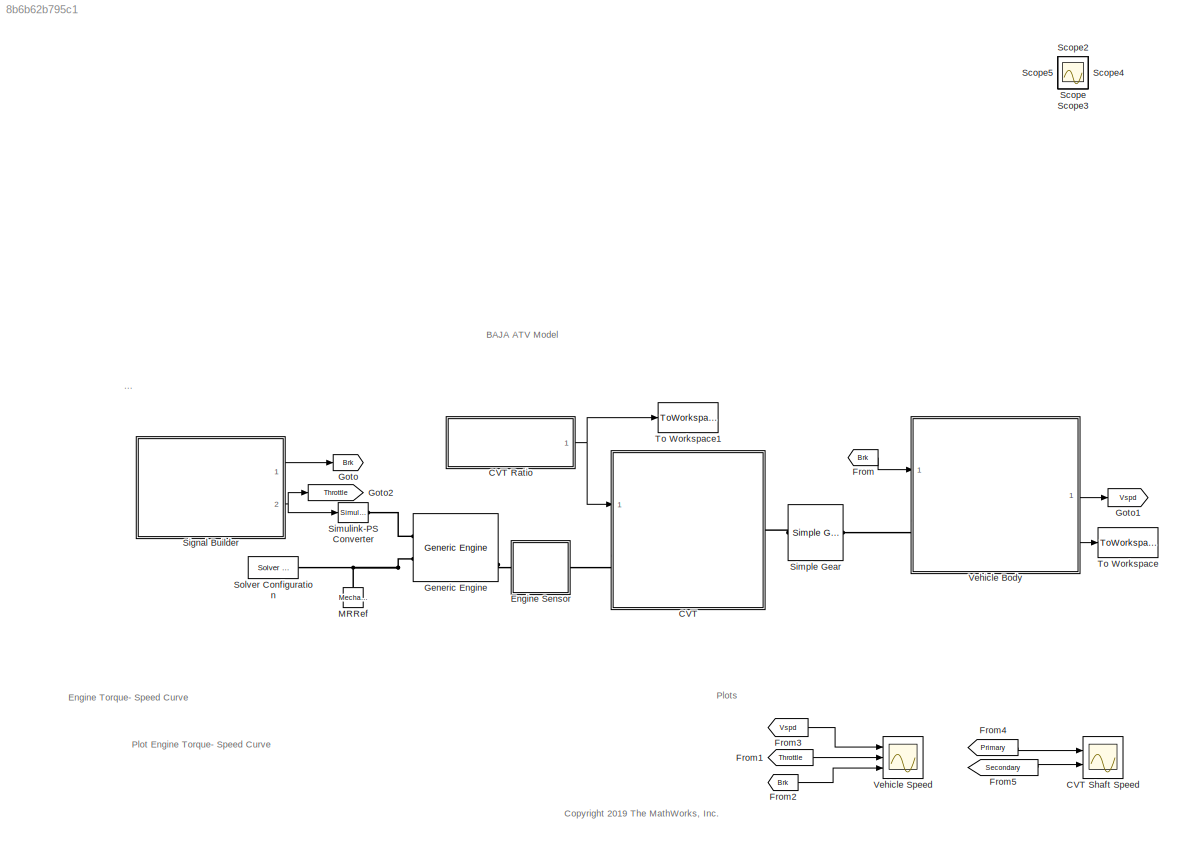
MODEL slx_8b6b62b795c1
KIND model
CONFIG AbsTol = 1e-3
CONFIG EnableMultiTasking = on
CONFIG FixedStep = 1e-3
CONFIG MaxStep = auto
CONFIG MinStep = auto
CONFIG PreLoadFcn = m1=3.5;\nm2=3.2;\nmr1=0.8;\nmr2=0.7;\nspeedVector=[1508.85099817596;1518.45723596462;1530.44196592720;1537.65262467286;1544.87011816615;1563.98348990289;1583.08660951818;1616.48460379372;1668.91395283447;1709.42350201510;1752.30812599583;1799.96340381967;1847.59134265301;1904.74008492967;1971.45405650923;2028.61646828115;2083.40038787914;2140.55254752961;2190.54189166781;2259.62068592604;2323.95274795...<+2046ch>
CONFIG RelTol = 1e-3
CONFIG SampleTimeConstraint = Unconstrained
CONFIG SolverName = VariableStepAuto
CONFIG StartTime = 0.0
CONFIG StopTime = 200
WORKSPACE source: mxarray member
WORKSPACE DOWN_TABLE = [0 0 0 0 0 0 5 5 5 5 30 30 ... (24 elements, 6x4)]
WORKSPACE DOWN_TH_BP = [0 0.05 0.4 0.5 0.9 1]
WORKSPACE TWAIT = 2
WORKSPACE UP_TABLE = [10 10 15 23 40 40 30 30 30 41 70 70 ... (24 elements, 6x4)]
WORKSPACE UP_TH_BP = [0 0.25 0.35 0.5 0.9 1]
WORKSPACE clutchRise = 0.1
WORKSPACE eff_tor_rad = 0.4
WORKSPACE engagement_area = 0.0025
WORKSPACE fric_coeff = 0.5
WORKSPACE num_fric_surf = 6
WORKSPACE p0 = 2000000
WORKSPACE peak_normal = 0.55
WORKSPACE pressThresh = 0.05
WORKSPACE velTol = 0.001
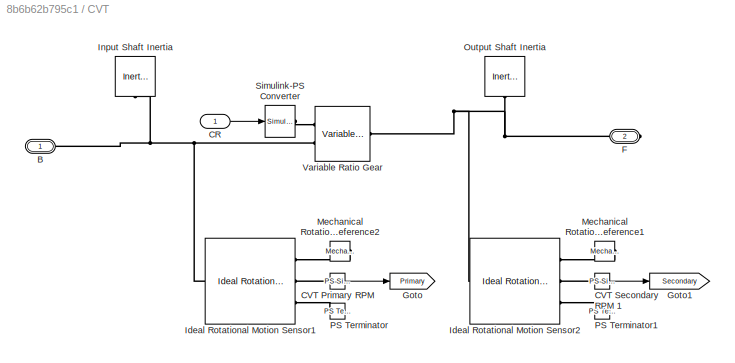
BLOCK [SubSystem] CVT
  Ports = [1, 0, 0, 0, 0, 1, 1]
  RequestExecContextInheritance = off
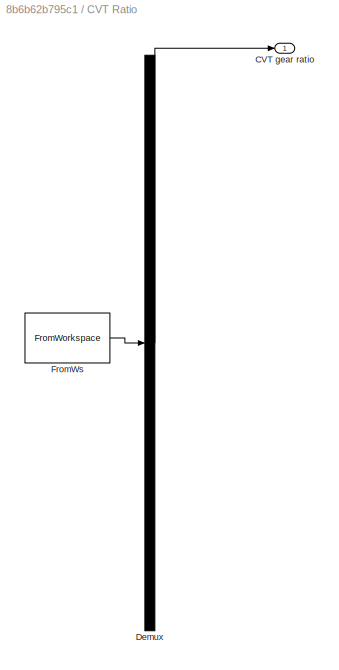
BLOCK [SubSystem] CVT Ratio
  ClipboardFcn = sigbuilder_block('clipboard');
  CloseFcn = sigbuilder_block('close');
  ContinueFcn = sigbuilder_block('continue');
  CopyFcn = sigbuilder_block('copy');
  DeleteFcn = sigbuilder_block('delete');
  LoadFcn = sigbuilder_block('load');
  MaskHideContents = on
  ModelCloseFcn = sigbuilder_block('modelClose');
  NameChangeFcn = sigbuilder_block('namechange');
  OpenFcn = sigbuilder_block('open',[144.5 122.5 454 242 ]);
  PauseFcn = sigbuilder_block('pause');
  Ports = [0, 1]
  PreSaveFcn = sigbuilder_block('preSave');
  RequestExecContextInheritance = off
  StartFcn = sigbuilder_block('start');
  StopFcn = sigbuilder_block('stop');
  Tag = STV Subsys
BLOCK [Outport] CVT Ratio/CVT gear ratio
  Tag = STV Outport
  VectorParamsAs1DForOutWhenUnconnected = off
BLOCK [Demux] CVT Ratio/Demux
  DisplayOption = none
  Outputs = 1
  Ports = [1, 1]
  Tag = STV Demux
BLOCK [FromWorkspace] CVT Ratio/FromWs
  Tag = STV FromWs
  VariableName = tuvar
BLOCK [Scope] CVT Shaft Speed
  Floating = off
  NumInputPorts = 2
  Ports = [2]
  ScopeSpecificationString = Simulink.scopes.TimeScopeBlockCfg('CurrentConfiguration', extmgr.ConfigurationSet(extmgr.Configuration('Core','General UI',true),extmgr.Configuration('Core','Source UI',true),extmgr.Configuration('Sources','WiredSimulink',true,'DataLoggingVariableName','ScopeData1'),extmgr.Configuration('Visuals','Time Domain',true,'SerializedDisplays',{struct('MinYLimReal','-119.46277','MaxYLimReal','1075.16489',...<+1564ch>
BLOCK [PMIOPort] CVT/B
  Side = Left
BLOCK [Inport] CVT/CR
BLOCK [Reference] CVT/CVT Primary RPM   REF=nesl_utility/PS-Simulink
Converter
  Ports = [0, 1, 0, 0, 0, 1]
  SourceBlock = nesl_utility/PS-Simulink\nConverter
  SourceProductBaseCode = SS,PW,VE
  SourceType = PS-Simulink\nConverter
BLOCK [Reference] CVT/CVT Secondary RPM 1  REF=nesl_utility/PS-Simulink
Converter
  Ports = [0, 1, 0, 0, 0, 1]
  SourceBlock = nesl_utility/PS-Simulink\nConverter
  SourceProductBaseCode = SS,PW,VE
  SourceType = PS-Simulink\nConverter
BLOCK [PMIOPort] CVT/F
  Port = 2
  Side = Right
BLOCK [Goto] CVT/Goto
  GotoTag = Primary
  TagVisibility = global
BLOCK [Goto] CVT/Goto1
  GotoTag = Secondary
  TagVisibility = global
BLOCK [Reference] CVT/Ideal Rotational Motion Sensor1  REF=fl_lib/Mechanical/Mechanical Sensors/Ideal Rotational
Motion Sensor
  Ports = [0, 0, 0, 0, 0, 1, 3]
  SourceBlock = fl_lib/Mechanical/Mechanical Sensors/Ideal Rotational\nMotion Sensor
  SourceProductBaseCode = PW,SS,VE
  SourceType = Ideal Rotational\nMotion Sensor
BLOCK [Reference] CVT/Ideal Rotational Motion Sensor2  REF=fl_lib/Mechanical/Mechanical Sensors/Ideal Rotational
Motion Sensor
  Ports = [0, 0, 0, 0, 0, 1, 3]
  SourceBlock = fl_lib/Mechanical/Mechanical Sensors/Ideal Rotational\nMotion Sensor
  SourceProductBaseCode = PW,SS,VE
  SourceType = Ideal Rotational\nMotion Sensor
BLOCK [Reference] CVT/Input Shaft Inertia  REF=fl_lib/Mechanical/Rotational Elements/Inertia
  NameLocation = right
  Ports = [0, 0, 0, 0, 0, 1]
  SourceBlock = fl_lib/Mechanical/Rotational Elements/Inertia
  SourceProductBaseCode = PW,SS,VE
  SourceType = Inertia
BLOCK [Reference] CVT/Mechanical Rotational Reference1  REF=fl_lib/Mechanical/Rotational Elements/Mechanical
Rotational Reference
  Ports = [0, 0, 0, 0, 0, 1]
  SourceBlock = fl_lib/Mechanical/Rotational Elements/Mechanical\nRotational Reference
  SourceProductBaseCode = PW,SS,VE
  SourceType = Mechanical\nRotational Reference
BLOCK [Reference] CVT/Mechanical Rotational Reference2  REF=fl_lib/Mechanical/Rotational Elements/Mechanical
Rotational Reference
  Ports = [0, 0, 0, 0, 0, 1]
  SourceBlock = fl_lib/Mechanical/Rotational Elements/Mechanical\nRotational Reference
  SourceProductBaseCode = PW,SS,VE
  SourceType = Mechanical\nRotational Reference
BLOCK [Reference] CVT/Output Shaft Inertia  REF=fl_lib/Mechanical/Rotational Elements/Inertia
  NameLocation = right
  Ports = [0, 0, 0, 0, 0, 1]
  SourceBlock = fl_lib/Mechanical/Rotational Elements/Inertia
  SourceProductBaseCode = PW,SS,VE
  SourceType = Inertia
BLOCK [Reference] CVT/PS Terminator  REF=fl_lib/Physical Signals/Sinks/PS Terminator
  Ports = [0, 0, 0, 0, 0, 1]
  SourceBlock = fl_lib/Physical Signals/Sinks/PS Terminator
  SourceProductBaseCode = PW,SS,VE
  SourceType = PS Terminator
BLOCK [Reference] CVT/PS Terminator1  REF=fl_lib/Physical Signals/Sinks/PS Terminator
  Ports = [0, 0, 0, 0, 0, 1]
  SourceBlock = fl_lib/Physical Signals/Sinks/PS Terminator
  SourceProductBaseCode = PW,SS,VE
  SourceType = PS Terminator
BLOCK [Reference] CVT/Simulink-PS Converter  REF=nesl_utility/Simulink-PS
Converter
  Ports = [1, 0, 0, 0, 0, 0, 1]
  SourceBlock = nesl_utility/Simulink-PS\nConverter
  SourceProductBaseCode = SS,PW,VE
  SourceType = Simulink-PS\nConverter
BLOCK [Reference] CVT/Variable Ratio Gear  REF=sdl_lib/Couplings & Drives/Variable Ratio
Transmission
  NameLocation = top
  Ports = [0, 0, 0, 0, 0, 2, 1]
  SourceBlock = sdl_lib/Couplings & Drives/Variable Ratio\nTransmission
  SourceProductBaseCode = LD
  SourceType = Variable Ratio\nTransmission
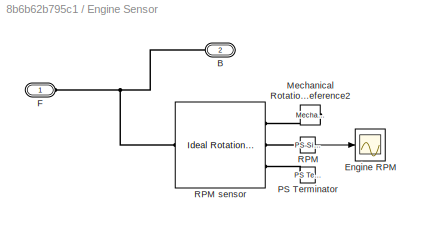
BLOCK [SubSystem] Engine Sensor
  Ports = [0, 0, 0, 0, 0, 1, 1]
  RequestExecContextInheritance = off
BLOCK [Reference] Engine Sensor/    RPM  REF=nesl_utility/PS-Simulink
Converter
  Ports = [0, 1, 0, 0, 0, 1]
  SourceBlock = nesl_utility/PS-Simulink\nConverter
  SourceProductBaseCode = SS,PW,VE
  SourceType = PS-Simulink\nConverter
BLOCK [PMIOPort] Engine Sensor/B 
  Port = 2
  Side = Right
BLOCK [Scope] Engine Sensor/Engine RPM 
  Floating = off
  NumInputPorts = 1
  Ports = [1]
  ScopeSpecificationString = Simulink.scopes.TimeScopeBlockCfg('CurrentConfiguration', extmgr.ConfigurationSet(extmgr.Configuration('Core','General UI',true),extmgr.Configuration('Core','Source UI',true),extmgr.Configuration('Sources','WiredSimulink',true,'DataLoggingVariableName','ScopeData2'),extmgr.Configuration('Visuals','Time Domain',true,'SerializedDisplays',{struct('MinYLimReal','1436.38887','MaxYLimReal','4079.2117','...<+1491ch>
BLOCK [PMIOPort] Engine Sensor/F
  Side = Left
BLOCK [Reference] Engine Sensor/Mechanical Rotational Reference2  REF=fl_lib/Mechanical/Rotational Elements/Mechanical
Rotational Reference
  Ports = [0, 0, 0, 0, 0, 1]
  SourceBlock = fl_lib/Mechanical/Rotational Elements/Mechanical\nRotational Reference
  SourceProductBaseCode = PW,SS,VE
  SourceType = Mechanical\nRotational Reference
BLOCK [Reference] Engine Sensor/PS Terminator  REF=fl_lib/Physical Signals/Sinks/PS Terminator
  Ports = [0, 0, 0, 0, 0, 1]
  SourceBlock = fl_lib/Physical Signals/Sinks/PS Terminator
  SourceProductBaseCode = PW,SS,VE
  SourceType = PS Terminator
BLOCK [Reference] Engine Sensor/RPM sensor  REF=fl_lib/Mechanical/Mechanical Sensors/Ideal Rotational
Motion Sensor
  Ports = [0, 0, 0, 0, 0, 1, 3]
  SourceBlock = fl_lib/Mechanical/Mechanical Sensors/Ideal Rotational\nMotion Sensor
  SourceProductBaseCode = PW,SS,VE
  SourceType = Ideal Rotational\nMotion Sensor
BLOCK [From] From
  GotoTag = Brk
  TagVisibility = global
BLOCK [From] From1
  GotoTag = Throttle
  TagVisibility = global
BLOCK [From] From2
  GotoTag = Brk
  TagVisibility = global
BLOCK [From] From3
  GotoTag = Vspd
  TagVisibility = global
BLOCK [From] From4
  GotoTag = Primary
  TagVisibility = global
BLOCK [From] From5
  GotoTag = Secondary
  TagVisibility = global
BLOCK [Reference] Generic Engine  REF=sdl_lib/Engines & Motors/Generic Engine
  Ports = [0, 0, 0, 0, 0, 2, 3]
  SourceBlock = sdl_lib/Engines & Motors/Generic Engine
  SourceProductBaseCode = LD
  SourceType = Generic Engine
BLOCK [Goto] Goto
  GotoTag = Brk
  TagVisibility = global
BLOCK [Goto] Goto1
  GotoTag = Vspd
  TagVisibility = global
BLOCK [Goto] Goto2
  GotoTag = Throttle
  TagVisibility = global
BLOCK [Reference] MRRef  REF=fl_lib/Mechanical/Rotational Elements/Mechanical
Rotational Reference
  NameLocation = right
  Ports = [0, 0, 0, 0, 0, 1]
  SourceBlock = fl_lib/Mechanical/Rotational Elements/Mechanical\nRotational Reference
  SourceProductBaseCode = PW,SS,VE
  SourceType = Mechanical\nRotational Reference
BLOCK [Scope] Scope
  Floating = off
  IOType = viewer
  NumInputPorts = 1
  Ports = []
  ScopeSpecificationString = Simulink.scopes.TimeScopeBlockCfg('CurrentConfiguration', extmgr.ConfigurationSet(extmgr.Configuration('Core','General UI',true),extmgr.Configuration('Core','Source UI',true),extmgr.Configuration('Sources','WiredSimulink',true,'DataLoggingVariableName','ScopeData1'),extmgr.Configuration('Visuals','Time Domain',true,'SerializedDisplays',{struct('MinYLimReal','0.625','MaxYLimReal','4.375','YLabelRea...<+2028ch>
BLOCK [Scope] Scope2
  Floating = off
  IOType = viewer
  NumInputPorts = 1
  Ports = []
  ScopeSpecificationString = Simulink.scopes.TimeScopeBlockCfg('CurrentConfiguration', extmgr.ConfigurationSet(extmgr.Configuration('Core','General UI',true),extmgr.Configuration('Core','Source UI',true),extmgr.Configuration('Sources','WiredSimulink',true,'DataLoggingVariableName','ScopeData2'),extmgr.Configuration('Visuals','Time Domain',true,'SerializedDisplays',{struct('MinYLimReal','-562.5','MaxYLimReal','5062.5','YLabelR...<+1395ch>
BLOCK [Scope] Scope3
  Floating = off
  IOType = viewer
  NumInputPorts = 1
  Ports = []
  ScopeSpecificationString = Simulink.scopes.TimeScopeBlockCfg('CurrentConfiguration', extmgr.ConfigurationSet(extmgr.Configuration('Core','General UI',true),extmgr.Configuration('Core','Source UI',true),extmgr.Configuration('Sources','WiredSimulink',true,'DataLoggingVariableName','ScopeData3'),extmgr.Configuration('Visuals','Time Domain',true,'SerializedDisplays',{struct('MinYLimReal','-120.00000','MaxYLimReal','1080.00000',...<+1377ch>
BLOCK [Scope] Scope4
  Floating = off
  IOType = viewer
  NumInputPorts = 1
  Ports = []
  ScopeSpecificationString = Simulink.scopes.TimeScopeBlockCfg('CurrentConfiguration', extmgr.ConfigurationSet(extmgr.Configuration('Core','General UI',true),extmgr.Configuration('Core','Source UI',true),extmgr.Configuration('Sources','WiredSimulink',true,'DataLoggingVariableName','ScopeData4'),extmgr.Configuration('Visuals','Time Domain',true,'SerializedDisplays',{struct('MinYLimReal','-3910.0051','MaxYLimReal','2615.29882',...<+1433ch>
BLOCK [Scope] Scope5
  Floating = off
  IOType = viewer
  NumInputPorts = 1
  Ports = []
  ScopeSpecificationString = Simulink.scopes.TimeScopeBlockCfg('CurrentConfiguration', extmgr.ConfigurationSet(extmgr.Configuration('Core','General UI',true),extmgr.Configuration('Core','Source UI',true),extmgr.Configuration('Sources','WiredSimulink',true,'DataLoggingVariableName','ScopeData5'),extmgr.Configuration('Visuals','Time Domain',true,'SerializedDisplays',{struct('MinYLimReal','-0.125','MaxYLimReal','1.125','YLabelRe...<+1376ch>
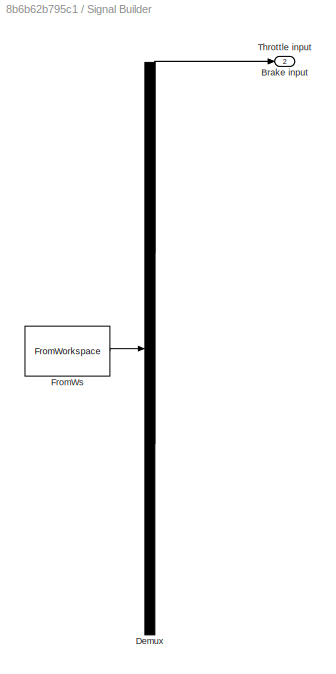
BLOCK [SubSystem] Signal Builder
  ClipboardFcn = sigbuilder_block('clipboard');
  CloseFcn = sigbuilder_block('close');
  ContinueFcn = sigbuilder_block('continue');
  CopyFcn = sigbuilder_block('copy');
  DeleteFcn = sigbuilder_block('delete');
  LoadFcn = sigbuilder_block('load');
  MaskHideContents = on
  ModelCloseFcn = sigbuilder_block('modelClose');
  NameChangeFcn = sigbuilder_block('namechange');
  OpenFcn = sigbuilder_block('open',[6 30 948 411.75 ]);
  PauseFcn = sigbuilder_block('pause');
  Ports = [0, 2]
  PreSaveFcn = sigbuilder_block('preSave');
  RequestExecContextInheritance = off
  StartFcn = sigbuilder_block('start');
  StopFcn = sigbuilder_block('stop');
  Tag = STV Subsys
BLOCK [Outport] Signal Builder/Brake input
  Tag = STV Outport
  VectorParamsAs1DForOutWhenUnconnected = off
BLOCK [Demux] Signal Builder/Demux
  DisplayOption = none
  Outputs = 2
  Ports = [1, 2]
  Tag = STV Demux
BLOCK [FromWorkspace] Signal Builder/FromWs
  Tag = STV FromWs
  VariableName = tuvar
BLOCK [Outport] Signal Builder/Throttle input
  Port = 2
  Tag = STV Outport
  VectorParamsAs1DForOutWhenUnconnected = off
BLOCK [Reference] Simple Gear  REF=sdl_lib/Gears/Simple Gear
  Ports = [0, 0, 0, 0, 0, 1, 1]
  SourceBlock = sdl_lib/Gears/Simple Gear
  SourceProductBaseCode = LD
  SourceType = Simple Gear
BLOCK [Reference] Simulink-PS Converter  REF=nesl_utility/Simulink-PS
Converter
  Ports = [1, 0, 0, 0, 0, 0, 1]
  SourceBlock = nesl_utility/Simulink-PS\nConverter
  SourceProductBaseCode = SS,PW,VE
  SourceType = Simulink-PS\nConverter
BLOCK [Reference] Solver Configuration  REF=nesl_utility/Solver
Configuration
  Ports = [0, 0, 0, 0, 0, 0, 1]
  SourceBlock = nesl_utility/Solver\nConfiguration
  SourceProductBaseCode = SS,PW,VE
  SourceType = Solver\nConfiguration
BLOCK [ToWorkspace] To Workspace
  FixptAsFi = on
  MaxDataPoints = inf
  Ports = [1]
  SampleTime = -1
  VariableName = vehicle_speed
BLOCK [ToWorkspace] To Workspace1
  FixptAsFi = on
  MaxDataPoints = inf
  Ports = [1]
  SampleTime = -1
  VariableName = cvtr
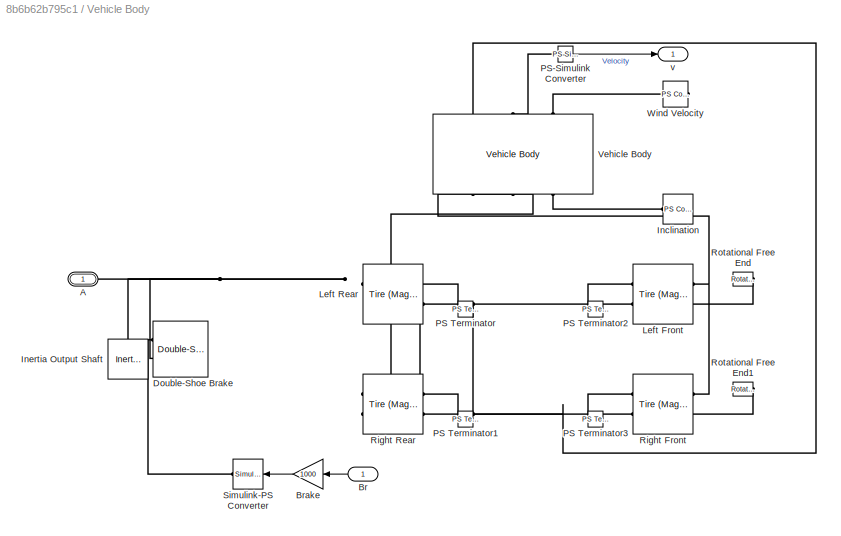
BLOCK [SubSystem] Vehicle Body
  Ports = [1, 1, 0, 0, 0, 1]
  RequestExecContextInheritance = off
  Tag = PublishSubsystem
BLOCK [PMIOPort] Vehicle Body/A
  Side = Left
BLOCK [Inport] Vehicle Body/Br
BLOCK [Gain] Vehicle Body/Brake
  Gain = 1000
BLOCK [Reference] Vehicle Body/Double-Shoe Brake  REF=sdl_lib/Brakes & Detents/Rotational/Double-Shoe Brake
  Ports = [0, 0, 0, 0, 0, 2]
  SourceBlock = sdl_lib/Brakes & Detents/Rotational/Double-Shoe Brake
  SourceProductBaseCode = LD
  SourceType = Double-Shoe Brake
BLOCK [Reference] Vehicle Body/Inclination  REF=fl_lib/Physical Signals/Sources/PS Constant
  Ports = [0, 0, 0, 0, 0, 0, 1]
  SourceBlock = fl_lib/Physical Signals/Sources/PS Constant
  SourceProductBaseCode = PW,SS,VE
  SourceType = PS Constant
BLOCK [Reference] Vehicle Body/Inertia Output Shaft  REF=fl_lib/Mechanical/Rotational Elements/Inertia
  NameLocation = right
  Ports = [0, 0, 0, 0, 0, 1]
  SourceBlock = fl_lib/Mechanical/Rotational Elements/Inertia
  SourceProductBaseCode = PW,SS,VE
  SourceType = Inertia
BLOCK [Reference] Vehicle Body/Left Front  REF=sdl_lib/Tires & Vehicles/Tire (Magic Formula)
  NameLocation = top
  Ports = [0, 0, 0, 0, 0, 2, 2]
  SourceBlock = sdl_lib/Tires & Vehicles/Tire (Magic Formula)
  SourceProductBaseCode = LD
  SourceType = Tire (Magic Formula)
BLOCK [Reference] Vehicle Body/Left Rear  REF=sdl_lib/Tires & Vehicles/Tire (Magic Formula)
  Ports = [0, 0, 0, 0, 0, 2, 2]
  SourceBlock = sdl_lib/Tires & Vehicles/Tire (Magic Formula)
  SourceProductBaseCode = LD
  SourceType = Tire (Magic Formula)
BLOCK [Reference] Vehicle Body/PS Terminator  REF=fl_lib/Physical Signals/Sinks/PS Terminator
  Ports = [0, 0, 0, 0, 0, 1]
  SourceBlock = fl_lib/Physical Signals/Sinks/PS Terminator
  SourceProductBaseCode = PW,SS,VE
  SourceType = PS Terminator
BLOCK [Reference] Vehicle Body/PS Terminator1  REF=fl_lib/Physical Signals/Sinks/PS Terminator
  Ports = [0, 0, 0, 0, 0, 1]
  SourceBlock = fl_lib/Physical Signals/Sinks/PS Terminator
  SourceProductBaseCode = PW,SS,VE
  SourceType = PS Terminator
BLOCK [Reference] Vehicle Body/PS Terminator2  REF=fl_lib/Physical Signals/Sinks/PS Terminator
  NameLocation = top
  Ports = [0, 0, 0, 0, 0, 1]
  SourceBlock = fl_lib/Physical Signals/Sinks/PS Terminator
  SourceProductBaseCode = PW,SS,VE
  SourceType = PS Terminator
BLOCK [Reference] Vehicle Body/PS Terminator3  REF=fl_lib/Physical Signals/Sinks/PS Terminator
  NameLocation = top
  Ports = [0, 0, 0, 0, 0, 1]
  SourceBlock = fl_lib/Physical Signals/Sinks/PS Terminator
  SourceProductBaseCode = PW,SS,VE
  SourceType = PS Terminator
BLOCK [Reference] Vehicle Body/PS-Simulink Converter  REF=nesl_utility/PS-Simulink
Converter
  Ports = [0, 1, 0, 0, 0, 1]
  SourceBlock = nesl_utility/PS-Simulink\nConverter
  SourceProductBaseCode = SS,PW,VE
  SourceType = PS-Simulink\nConverter
BLOCK [Reference] Vehicle Body/Right Front  REF=sdl_lib/Tires & Vehicles/Tire (Magic Formula)
  NameLocation = top
  Ports = [0, 0, 0, 0, 0, 2, 2]
  SourceBlock = sdl_lib/Tires & Vehicles/Tire (Magic Formula)
  SourceProductBaseCode = LD
  SourceType = Tire (Magic Formula)
BLOCK [Reference] Vehicle Body/Right Rear  REF=sdl_lib/Tires & Vehicles/Tire (Magic Formula)
  Ports = [0, 0, 0, 0, 0, 2, 2]
  SourceBlock = sdl_lib/Tires & Vehicles/Tire (Magic Formula)
  SourceProductBaseCode = LD
  SourceType = Tire (Magic Formula)
BLOCK [Reference] Vehicle Body/Rotational Free End  REF=fl_lib/Mechanical/Rotational Elements/Rotational Free End
  NameLocation = top
  Ports = [0, 0, 0, 0, 0, 1]
  SourceBlock = fl_lib/Mechanical/Rotational Elements/Rotational Free End
  SourceProductBaseCode = PW,SS,VE
  SourceType = Rotational Free End
BLOCK [Reference] Vehicle Body/Rotational Free End1  REF=fl_lib/Mechanical/Rotational Elements/Rotational Free End
  NameLocation = top
  Ports = [0, 0, 0, 0, 0, 1]
  SourceBlock = fl_lib/Mechanical/Rotational Elements/Rotational Free End
  SourceProductBaseCode = PW,SS,VE
  SourceType = Rotational Free End
BLOCK [Reference] Vehicle Body/Simulink-PS Converter  REF=nesl_utility/Simulink-PS
Converter
  Ports = [1, 0, 0, 0, 0, 0, 1]
  SourceBlock = nesl_utility/Simulink-PS\nConverter
  SourceProductBaseCode = SS,PW,VE
  SourceType = Simulink-PS\nConverter
BLOCK [Reference] Vehicle Body/Vehicle Body  REF=sdl_lib/Tires & Vehicles/Vehicle Body
  NameLocation = right
  Ports = [0, 0, 0, 0, 0, 3, 3]
  SourceBlock = sdl_lib/Tires & Vehicles/Vehicle Body
  SourceProductBaseCode = LD
  SourceType = Vehicle Body
BLOCK [Reference] Vehicle Body/Wind Velocity  REF=fl_lib/Physical Signals/Sources/PS Constant
  Ports = [0, 0, 0, 0, 0, 0, 1]
  SourceBlock = fl_lib/Physical Signals/Sources/PS Constant
  SourceProductBaseCode = PW,SS,VE
  SourceType = PS Constant
BLOCK [Outport] Vehicle Body/v
  NameLocation = top
  VectorParamsAs1DForOutWhenUnconnected = off
BLOCK [Scope] Vehicle Speed
  Floating = off
  NumInputPorts = 3
  Ports = [3]
  ScopeSpecificationString = Simulink.scopes.TimeScopeBlockCfg('CurrentConfiguration', extmgr.ConfigurationSet(extmgr.Configuration('Core','General UI',true),extmgr.Configuration('Core','Source UI',true),extmgr.Configuration('Sources','WiredSimulink',true,'DataLoggingVariableName','ScopeData2'),extmgr.Configuration('Visuals','Time Domain',true,'SerializedDisplays',{struct('MinYLimReal','-8.2381','MaxYLimReal','74.14293','YLab...<+2247ch>
ANNOTATION (root): Simscape Model
ANNOTATION (root): Plots
ANNOTATION (root): Engine Torque- Speed Curve
ANNOTATION (root): <copyright redacted>
ANNOTATION (root): BAJA ATV Model
ANNOTATION (root): Plot Engine Torque- Speed Curve
NET CVT Ratio:1 -> CVT:1, To Workspace1:1
LINE CVT/CR:1 -> CVT/Simulink-PS Converter:1
LINE CVT/CVT Primary RPM :1 -> CVT/Goto:1
LINE CVT/CVT Secondary RPM 1:1 -> CVT/Goto1:1
LINE Engine Sensor/    RPM:1 -> Engine Sensor/Engine RPM :1
LINE From1:1 -> Vehicle Speed:2
LINE From2:1 -> Vehicle Speed:3
LINE From3:1 -> Vehicle Speed:1
LINE From4:1 -> CVT Shaft Speed:1
LINE From5:1 -> CVT Shaft Speed:2
LINE From:1 -> Vehicle Body:1
LINE Signal Builder:1 -> Goto:1
NET Signal Builder:2 -> Goto2:1, Simulink-PS Converter:1
LINE Vehicle Body/Br:1 -> Vehicle Body/Brake:1
LINE Vehicle Body/Brake:1 -> Vehicle Body/Simulink-PS Converter:1
LINE Vehicle Body/PS-Simulink Converter:1 -> Vehicle Body/v:1
NET Vehicle Body:1 -> Goto1:1, To Workspace:1
PNET net1: CVT/B:RConn1 -- CVT/Ideal Rotational Motion Sensor1:LConn1 -- CVT/Input Shaft Inertia:LConn1 -- CVT/Variable Ratio Gear:LConn2
PLINE CVT/CVT Primary RPM :LConn1 -- CVT/Ideal Rotational Motion Sensor1:RConn2
PLINE CVT/CVT Secondary RPM 1:LConn1 -- CVT/Ideal Rotational Motion Sensor2:RConn2
PNET net2: CVT/F:RConn1 -- CVT/Ideal Rotational Motion Sensor2:LConn1 -- CVT/Output Shaft Inertia:LConn1 -- CVT/Variable Ratio Gear:RConn1
PLINE CVT/Ideal Rotational Motion Sensor1:RConn1 -- CVT/Mechanical Rotational Reference2:LConn1
PLINE CVT/Ideal Rotational Motion Sensor1:RConn3 -- CVT/PS Terminator:LConn1
PLINE CVT/Ideal Rotational Motion Sensor2:RConn1 -- CVT/Mechanical Rotational Reference1:LConn1
PLINE CVT/Ideal Rotational Motion Sensor2:RConn3 -- CVT/PS Terminator1:LConn1
PLINE CVT/Simulink-PS Converter:RConn1 -- CVT/Variable Ratio Gear:LConn1
PLINE CVT:LConn1 -- Engine Sensor:RConn1
PLINE CVT:RConn1 -- Simple Gear:LConn1
PLINE Engine Sensor/    RPM:LConn1 -- Engine Sensor/RPM sensor:RConn2
PNET net3: Engine Sensor/B :RConn1 -- Engine Sensor/F:RConn1 -- Engine Sensor/RPM sensor:LConn1
PLINE Engine Sensor/Mechanical Rotational Reference2:LConn1 -- Engine Sensor/RPM sensor:RConn1
PLINE Engine Sensor/PS Terminator:LConn1 -- Engine Sensor/RPM sensor:RConn3
PLINE Engine Sensor:LConn1 -- Generic Engine:RConn3
PLINE Generic Engine:LConn1 -- Simulink-PS Converter:RConn1
PNET net4: Generic Engine:LConn2 -- MRRef:LConn1 -- Solver Configuration:RConn1
PLINE Simple Gear:RConn1 -- Vehicle Body:LConn1
PNET net5: Vehicle Body/A:RConn1 -- Vehicle Body/Double-Shoe Brake:LConn2 -- Vehicle Body/Inertia Output Shaft:LConn1 -- Vehicle Body/Left Rear:LConn2 -- Vehicle Body/Right Rear:LConn2
PLINE Vehicle Body/Double-Shoe Brake:LConn1 -- Vehicle Body/Simulink-PS Converter:RConn1
PLINE Vehicle Body/Inclination:RConn1 -- Vehicle Body/Vehicle Body:RConn3
PNET net6: Vehicle Body/Left Front:LConn1 -- Vehicle Body/Right Front:LConn1 -- Vehicle Body/Vehicle Body:RConn2
PLINE Vehicle Body/Left Front:LConn2 -- Vehicle Body/Rotational Free End:LConn1
PLINE Vehicle Body/Left Front:RConn1 -- Vehicle Body/PS Terminator2:LConn1
PNET net7: Vehicle Body/Left Front:RConn2 -- Vehicle Body/Left Rear:RConn2 -- Vehicle Body/Right Front:RConn2 -- Vehicle Body/Right Rear:RConn2 -- Vehicle Body/Vehicle Body:LConn1
PNET net8: Vehicle Body/Left Rear:LConn1 -- Vehicle Body/Right Rear:LConn1 -- Vehicle Body/Vehicle Body:RConn1
PLINE Vehicle Body/Left Rear:RConn1 -- Vehicle Body/PS Terminator:LConn1
PLINE Vehicle Body/PS Terminator1:LConn1 -- Vehicle Body/Right Rear:RConn1
PLINE Vehicle Body/PS Terminator3:LConn1 -- Vehicle Body/Right Front:RConn1
PLINE Vehicle Body/PS-Simulink Converter:LConn1 -- Vehicle Body/Vehicle Body:LConn2
PLINE Vehicle Body/Right Front:LConn2 -- Vehicle Body/Rotational Free End1:LConn1
PLINE Vehicle Body/Vehicle Body:LConn3 -- Vehicle Body/Wind Velocity:RConn1
note: NET lines group one-source signal fan-out (src -> all destinations, sorted); 1:1 wires keep LINE; PNET lines group multi-terminal physical nets as a canonical sorted terminal list (undirected conserving connections); 2-terminal nets keep the pairwise PLINE form
